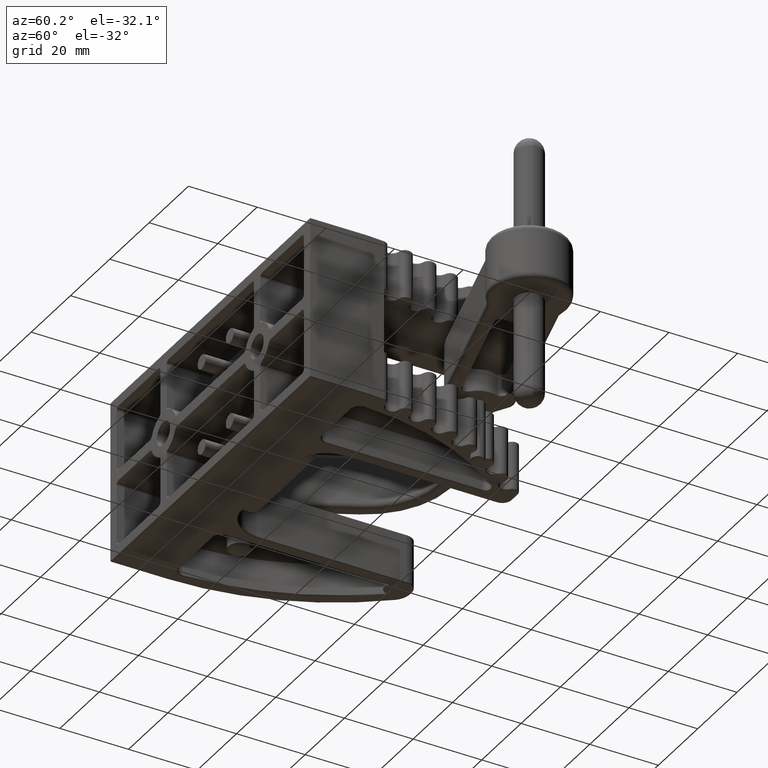
[diagram: clean part render]
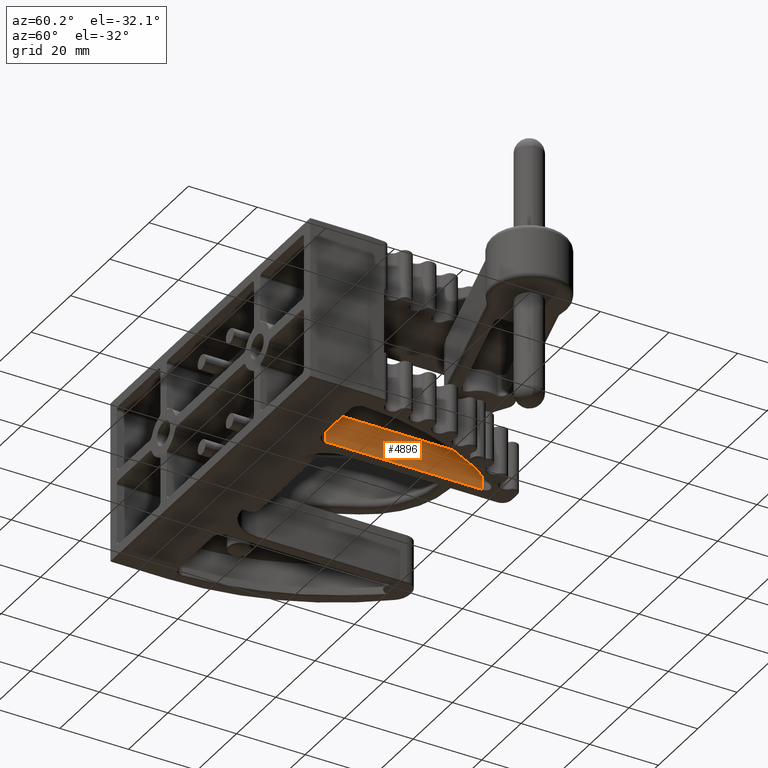
[diagram: same view with one face highlighted and labeled with its STEP entity id]
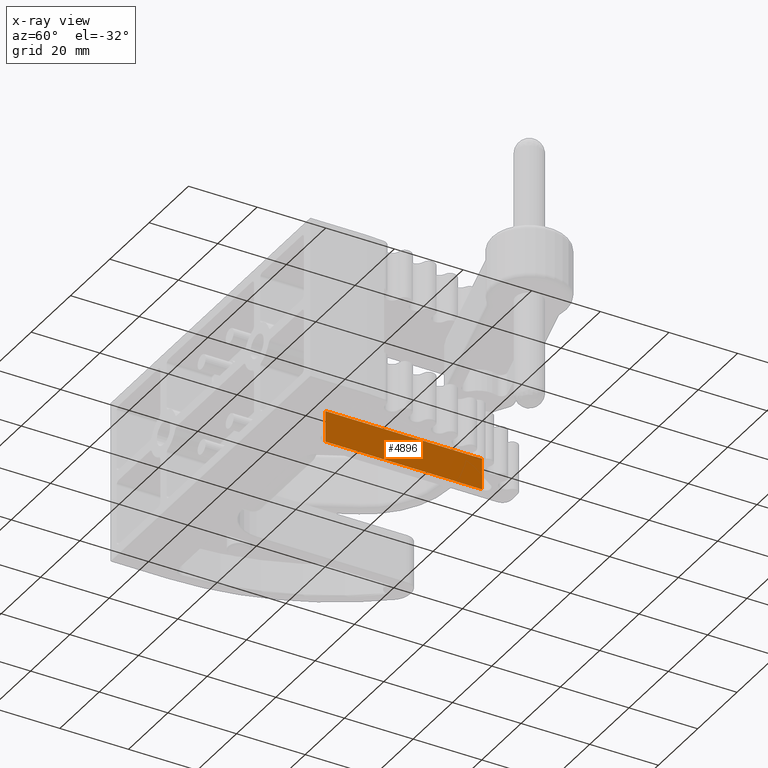
[diagram: x-ray of the same camera — body ghosted, the highlighted face saturated]
A machine part, auxiliary view. The second image highlights one B-rep face of the part: STEP entity #4896.
The next image is the same camera in x-ray: the body ghosted, the highlighted face saturated — about 0% of this face is hidden behind the body in this view.
In plain terms, the highlighted planar face has unit normal (1, -0, 0).
Its self-contained STEP definition (entity closure, byte-faithful):
#212 = DIRECTION ( 'NONE',  ( 1.000000000000000000, -3.649045715484118000E-015, 0.0000000000000000000 ) ) ;
#1031 = VECTOR ( 'NONE', #11169, 39.37007874015748100 ) ;
#1363 = ORIENTED_EDGE ( 'NONE', *, *, #24258, .T. ) ;
#2198 = LINE ( 'NONE', #17091, #26474 ) ;
#2253 = LINE ( 'NONE', #25503, #19775 ) ;
#2413 = FACE_OUTER_BOUND ( 'NONE', #12259, .T. ) ;
#2416 = CARTESIAN_POINT ( 'NONE',  ( 0.9995814821204057600, 2.546503369510575900, -0.5625000000000000000 ) ) ;
#2766 = DIRECTION ( 'NONE',  ( 3.649045715484118000E-015, 1.000000000000000000, -0.0000000000000000000 ) ) ;
#2769 = VERTEX_POINT ( 'NONE', #5981 ) ;
#4110 = ORIENTED_EDGE ( 'NONE', *, *, #22493, .F. ) ;
#4645 = ORIENTED_EDGE ( 'NONE', *, *, #7084, .T. ) ;
#4896 = ADVANCED_FACE ( 'NONE', ( #2413 ), #13884, .T. ) ;
#5981 = CARTESIAN_POINT ( 'NONE',  ( 0.9995814821203992100, 0.7497499999999965900, -0.5625000000000000000 ) ) ;
#7084 = EDGE_CURVE ( 'NONE', #15931, #2769, #2198, .T. ) ;
#7766 = CARTESIAN_POINT ( 'NONE',  ( 0.9995814821204057600, 2.546503369510575900, -0.5625000000000000000 ) ) ;
#8906 = CARTESIAN_POINT ( 'NONE',  ( 0.9995814821203992100, 0.7497499999999965900, -0.5625000000000000000 ) ) ;
#9644 = EDGE_CURVE ( 'NONE', #26590, #14724, #2253, .T. ) ;
#10372 = LINE ( 'NONE', #19206, #21810 ) ;
#11169 = DIRECTION ( 'NONE',  ( -0.0000000000000000000, -0.0000000000000000000, -1.000000000000000000 ) ) ;
#12259 = EDGE_LOOP ( 'NONE', ( #1363, #14703, #4110, #4645 ) ) ;
#13884 = PLANE ( 'NONE',  #28011 ) ;
#13894 = LINE ( 'NONE', #8906, #1031 ) ;
#14703 = ORIENTED_EDGE ( 'NONE', *, *, #9644, .T. ) ;
#14724 = VERTEX_POINT ( 'NONE', #26953 ) ;
#14786 = DIRECTION ( 'NONE',  ( -3.649045715484118000E-015, -1.000000000000000000, -0.0000000000000000000 ) ) ;
#15863 = CARTESIAN_POINT ( 'NONE',  ( 0.9995814821203992100, 0.7497499999999965900, -0.9218749999999998900 ) ) ;
#15931 = VERTEX_POINT ( 'NONE', #7766 ) ;
#16184 = DIRECTION ( 'NONE',  ( 3.649045715484118000E-015, 1.000000000000000000, 0.0000000000000000000 ) ) ;
#17091 = CARTESIAN_POINT ( 'NONE',  ( 0.9995814821204057600, 2.546503369510575900, -0.5625000000000000000 ) ) ;
#19206 = CARTESIAN_POINT ( 'NONE',  ( 0.9995814821204057600, 2.546503369510575900, -0.5625000000000000000 ) ) ;
#19775 = VECTOR ( 'NONE', #2766, 39.37007874015748100 ) ;
#21280 = DIRECTION ( 'NONE',  ( -0.0000000000000000000, -0.0000000000000000000, -1.000000000000000000 ) ) ;
#21810 = VECTOR ( 'NONE', #21280, 39.37007874015748100 ) ;
#22493 = EDGE_CURVE ( 'NONE', #15931, #14724, #10372, .T. ) ;
#24258 = EDGE_CURVE ( 'NONE', #2769, #26590, #13894, .T. ) ;
#25503 = CARTESIAN_POINT ( 'NONE',  ( 0.9995814821204057600, 2.546503369510575900, -0.9218750000000000000 ) ) ;
#26474 = VECTOR ( 'NONE', #14786, 39.37007874015748100 ) ;
#26590 = VERTEX_POINT ( 'NONE', #15863 ) ;
#26953 = CARTESIAN_POINT ( 'NONE',  ( 0.9995814821204057600, 2.546503369510575900, -0.9218749999999998900 ) ) ;
#28011 = AXIS2_PLACEMENT_3D ( 'NONE', #2416, #212, #16184 ) ;